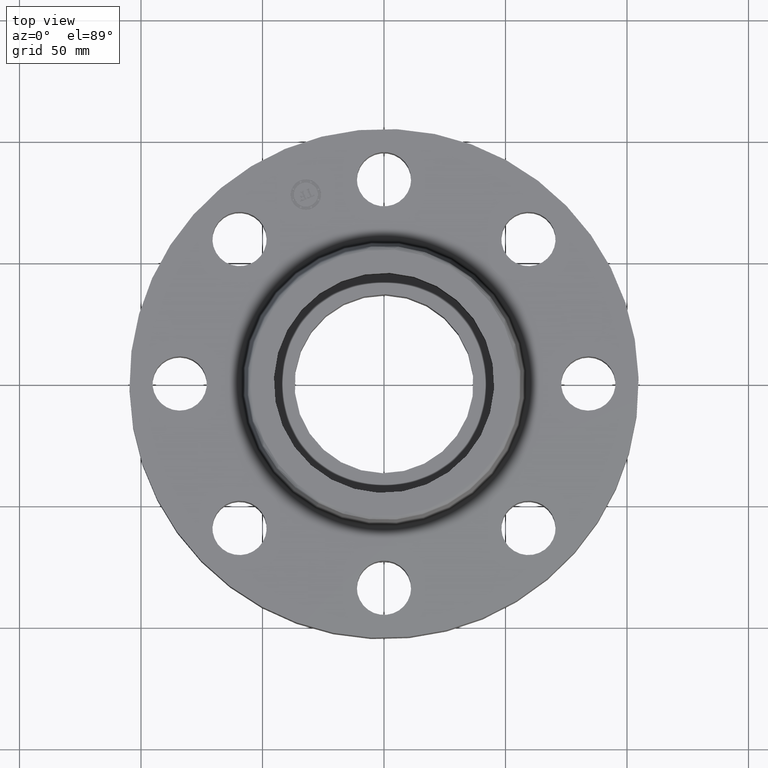
[diagram: clean part render]
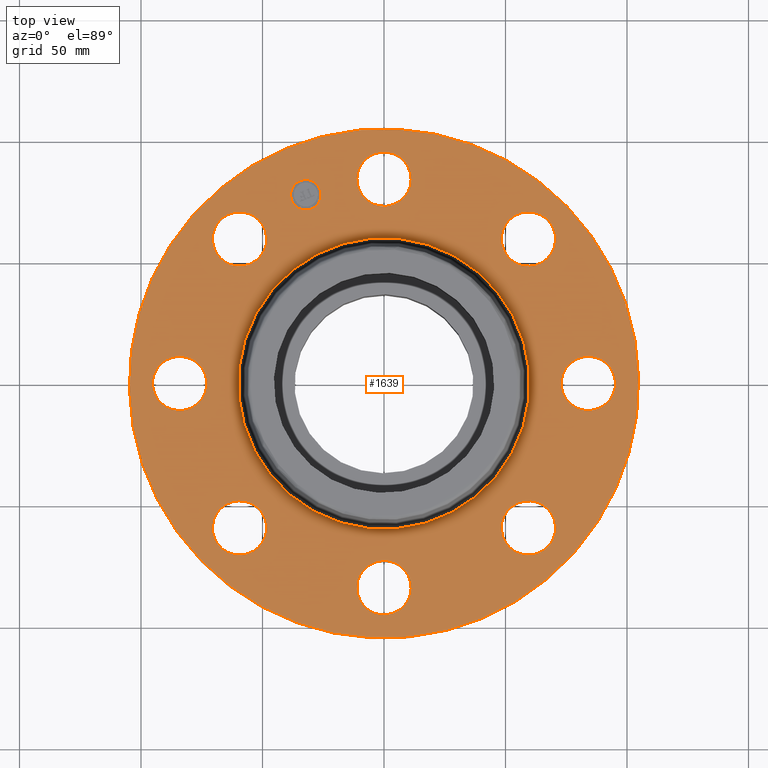
[diagram: same view with one face highlighted and labeled with its STEP entity id]
A machine part, top view. The second image highlights one B-rep face of the part: STEP entity #1639.
In plain terms, the highlighted planar face has unit normal (0, 0, -1).
Its self-contained STEP definition (entity closure, byte-faithful):
#833=AXIS2_PLACEMENT_3D('Circle Axis2P3D',#831,#832,$) ;
#852=AXIS2_PLACEMENT_3D('Circle Axis2P3D',#850,#851,$) ;
#883=AXIS2_PLACEMENT_3D('Circle Axis2P3D',#881,#882,$) ;
#914=AXIS2_PLACEMENT_3D('Circle Axis2P3D',#912,#913,$) ;
#945=AXIS2_PLACEMENT_3D('Circle Axis2P3D',#943,#944,$) ;
#976=AXIS2_PLACEMENT_3D('Circle Axis2P3D',#974,#975,$) ;
#1007=AXIS2_PLACEMENT_3D('Circle Axis2P3D',#1005,#1006,$) ;
#1038=AXIS2_PLACEMENT_3D('Circle Axis2P3D',#1036,#1037,$) ;
#1069=AXIS2_PLACEMENT_3D('Circle Axis2P3D',#1067,#1068,$) ;
#1100=AXIS2_PLACEMENT_3D('Circle Axis2P3D',#1098,#1099,$) ;
#1112=AXIS2_PLACEMENT_3D('Circle Axis2P3D',#1110,#1111,$) ;
#1128=AXIS2_PLACEMENT_3D('Circle Axis2P3D',#1126,#1127,$) ;
#1144=AXIS2_PLACEMENT_3D('Circle Axis2P3D',#1142,#1143,$) ;
#1160=AXIS2_PLACEMENT_3D('Circle Axis2P3D',#1158,#1159,$) ;
#1176=AXIS2_PLACEMENT_3D('Circle Axis2P3D',#1174,#1175,$) ;
#1192=AXIS2_PLACEMENT_3D('Circle Axis2P3D',#1190,#1191,$) ;
#1208=AXIS2_PLACEMENT_3D('Circle Axis2P3D',#1206,#1207,$) ;
#1224=AXIS2_PLACEMENT_3D('Circle Axis2P3D',#1222,#1223,$) ;
#1245=AXIS2_PLACEMENT_3D('Circle Axis2P3D',#1243,#1244,$) ;
#1280=AXIS2_PLACEMENT_3D('Circle Axis2P3D',#1278,#1279,$) ;
#1579=AXIS2_PLACEMENT_3D('Plane Axis2P3D',#1576,#1577,#1578) ;
#1623=AXIS2_PLACEMENT_3D('Circle Axis2P3D',#1621,#1622,$) ;
#1632=AXIS2_PLACEMENT_3D('Circle Axis2P3D',#1630,#1631,$) ;
#828=CARTESIAN_POINT('Vertex',(-1.97763034675,-3.62002806781,1.25000000001)) ;
#831=CARTESIAN_POINT('Axis2P3D Location',(0.,0.,1.25000000001)) ;
#835=CARTESIAN_POINT('Vertex',(1.97763034675,3.62002806781,1.25000000001)) ;
#850=CARTESIAN_POINT('Axis2P3D Location',(0.,0.,1.25000000001)) ;
#871=CARTESIAN_POINT('Vertex',(2.76272528293,-2.21664605203,1.25000000001)) ;
#878=CARTESIAN_POINT('Vertex',(1.91832160854,-2.46440083944,1.25000000001)) ;
#881=CARTESIAN_POINT('Axis2P3D Location',(2.34052344574,-2.34052344574,1.25000000001)) ;
#902=CARTESIAN_POINT('Vertex',(0.386136327233,-3.520947237,1.25000000001)) ;
#909=CARTESIAN_POINT('Vertex',(-0.386136327233,-3.09905276303,1.25000000001)) ;
#912=CARTESIAN_POINT('Axis2P3D Location',(4.05358090519E-016,-3.31000000001,1.25000000001)) ;
#933=CARTESIAN_POINT('Vertex',(-2.21664605203,-2.76272528293,1.25000000001)) ;
#940=CARTESIAN_POINT('Vertex',(-2.46440083944,-1.91832160854,1.25000000001)) ;
#943=CARTESIAN_POINT('Axis2P3D Location',(-2.34052344574,-2.34052344574,1.25000000001)) ;
#964=CARTESIAN_POINT('Vertex',(-3.520947237,-0.386136327233,1.25000000001)) ;
#971=CARTESIAN_POINT('Vertex',(-3.09905276303,0.386136327233,1.25000000001)) ;
#974=CARTESIAN_POINT('Axis2P3D Location',(-3.31000000001,-6.08037135779E-016,1.25000000001)) ;
#995=CARTESIAN_POINT('Vertex',(-2.76272528293,2.21664605203,1.25000000001)) ;
#1002=CARTESIAN_POINT('Vertex',(-1.91832160854,2.46440083944,1.25000000001)) ;
#1005=CARTESIAN_POINT('Axis2P3D Location',(-2.34052344574,2.34052344574,1.25000000001)) ;
#1026=CARTESIAN_POINT('Vertex',(-0.386136327233,3.520947237,1.25000000001)) ;
#1033=CARTESIAN_POINT('Vertex',(0.386136327233,3.09905276303,1.25000000001)) ;
#1036=CARTESIAN_POINT('Axis2P3D Location',(0.,3.31000000001,1.25000000001)) ;
#1057=CARTESIAN_POINT('Vertex',(2.21664605203,2.76272528293,1.25000000001)) ;
#1064=CARTESIAN_POINT('Vertex',(2.46440083944,1.91832160854,1.25000000001)) ;
#1067=CARTESIAN_POINT('Axis2P3D Location',(2.34052344574,2.34052344574,1.25000000001)) ;
#1088=CARTESIAN_POINT('Vertex',(3.520947237,0.386136327233,1.25000000001)) ;
#1095=CARTESIAN_POINT('Vertex',(3.09905276303,-0.386136327233,1.25000000001)) ;
#1098=CARTESIAN_POINT('Axis2P3D Location',(3.31000000001,2.0267904526E-016,1.25000000001)) ;
#1110=CARTESIAN_POINT('Axis2P3D Location',(2.34052344574,2.34052344574,1.25000000001)) ;
#1126=CARTESIAN_POINT('Axis2P3D Location',(0.,3.31000000001,1.25000000001)) ;
#1142=CARTESIAN_POINT('Axis2P3D Location',(-2.34052344574,2.34052344574,1.25000000001)) ;
#1158=CARTESIAN_POINT('Axis2P3D Location',(-3.31000000001,-6.08037135779E-016,1.25000000001)) ;
#1174=CARTESIAN_POINT('Axis2P3D Location',(-2.34052344574,-2.34052344574,1.25000000001)) ;
#1190=CARTESIAN_POINT('Axis2P3D Location',(4.05358090519E-016,-3.31000000001,1.25000000001)) ;
#1206=CARTESIAN_POINT('Axis2P3D Location',(2.34052344574,-2.34052344574,1.25000000001)) ;
#1222=CARTESIAN_POINT('Axis2P3D Location',(3.31000000001,2.0267904526E-016,1.25000000001)) ;
#1243=CARTESIAN_POINT('Axis2P3D Location',(0.,0.,1.25000000001)) ;
#1247=CARTESIAN_POINT('Vertex',(1.13161014174,2.07139847022,1.25000000001)) ;
#1249=CARTESIAN_POINT('Vertex',(-1.13161014174,-2.07139847022,1.25000000001)) ;
#1278=CARTESIAN_POINT('Axis2P3D Location',(0.,0.,1.25000000001)) ;
#1576=CARTESIAN_POINT('Axis2P3D Location',(0.,4.12500000002,1.25000000001)) ;
#1621=CARTESIAN_POINT('Axis2P3D Location',(-1.26668216113,3.05804125262,1.25000000001)) ;
#1625=CARTESIAN_POINT('Vertex',(-1.49534234543,2.96332710311,1.25000000001)) ;
#1627=CARTESIAN_POINT('Vertex',(-1.03802197684,3.15275540214,1.25000000001)) ;
#1630=CARTESIAN_POINT('Axis2P3D Location',(-1.26668216113,3.05804125262,1.25000000001)) ;
#832=DIRECTION('Axis2P3D Direction',(0.,0.,-0.0393700787402)) ;
#851=DIRECTION('Axis2P3D Direction',(0.,0.,-0.0393700787402)) ;
#882=DIRECTION('Axis2P3D Direction',(-0.,0.,-0.0393700787402)) ;
#913=DIRECTION('Axis2P3D Direction',(-0.,0.,-0.0393700787402)) ;
#944=DIRECTION('Axis2P3D Direction',(0.,0.,-0.0393700787402)) ;
#975=DIRECTION('Axis2P3D Direction',(0.,0.,-0.0393700787402)) ;
#1006=DIRECTION('Axis2P3D Direction',(0.,0.,-0.0393700787402)) ;
#1037=DIRECTION('Axis2P3D Direction',(0.,-0.,-0.0393700787402)) ;
#1068=DIRECTION('Axis2P3D Direction',(0.,-0.,-0.0393700787402)) ;
#1099=DIRECTION('Axis2P3D Direction',(0.,-0.,-0.0393700787402)) ;
#1111=DIRECTION('Axis2P3D Direction',(0.,-0.,-0.0393700787402)) ;
#1127=DIRECTION('Axis2P3D Direction',(0.,-0.,-0.0393700787402)) ;
#1143=DIRECTION('Axis2P3D Direction',(0.,0.,-0.0393700787402)) ;
#1159=DIRECTION('Axis2P3D Direction',(0.,0.,-0.0393700787402)) ;
#1175=DIRECTION('Axis2P3D Direction',(0.,0.,-0.0393700787402)) ;
#1191=DIRECTION('Axis2P3D Direction',(-0.,0.,-0.0393700787402)) ;
#1207=DIRECTION('Axis2P3D Direction',(-0.,0.,-0.0393700787402)) ;
#1223=DIRECTION('Axis2P3D Direction',(0.,-0.,-0.0393700787402)) ;
#1244=DIRECTION('Axis2P3D Direction',(0.,0.,-0.0393700787402)) ;
#1279=DIRECTION('Axis2P3D Direction',(0.,0.,-0.0393700787402)) ;
#1577=DIRECTION('Axis2P3D Direction',(0.,0.,-0.0393700787402)) ;
#1578=DIRECTION('Axis2P3D XDirection',(0.0393700787402,0.,0.)) ;
#1622=DIRECTION('Axis2P3D Direction',(0.,0.,-0.0393700787402)) ;
#1631=DIRECTION('Axis2P3D Direction',(0.,0.,-0.0393700787402)) ;
#1582=ORIENTED_EDGE('',*,*,#854,.F.) ;
#1583=ORIENTED_EDGE('',*,*,#837,.F.) ;
#1586=ORIENTED_EDGE('',*,*,#1040,.T.) ;
#1587=ORIENTED_EDGE('',*,*,#1130,.T.) ;
#1590=ORIENTED_EDGE('',*,*,#1282,.T.) ;
#1591=ORIENTED_EDGE('',*,*,#1251,.T.) ;
#1594=ORIENTED_EDGE('',*,*,#1114,.T.) ;
#1595=ORIENTED_EDGE('',*,*,#1071,.T.) ;
#1598=ORIENTED_EDGE('',*,*,#1226,.T.) ;
#1599=ORIENTED_EDGE('',*,*,#1102,.T.) ;
#1602=ORIENTED_EDGE('',*,*,#1210,.T.) ;
#1603=ORIENTED_EDGE('',*,*,#885,.T.) ;
#1606=ORIENTED_EDGE('',*,*,#1194,.T.) ;
#1607=ORIENTED_EDGE('',*,*,#916,.T.) ;
#1610=ORIENTED_EDGE('',*,*,#1178,.T.) ;
#1611=ORIENTED_EDGE('',*,*,#947,.T.) ;
#1614=ORIENTED_EDGE('',*,*,#1162,.T.) ;
#1615=ORIENTED_EDGE('',*,*,#978,.T.) ;
#1618=ORIENTED_EDGE('',*,*,#1146,.T.) ;
#1619=ORIENTED_EDGE('',*,*,#1009,.T.) ;
#1636=ORIENTED_EDGE('',*,*,#1629,.T.) ;
#1637=ORIENTED_EDGE('',*,*,#1634,.T.) ;
#1588=FACE_BOUND('',#1585,.T.) ;
#1592=FACE_BOUND('',#1589,.T.) ;
#1596=FACE_BOUND('',#1593,.T.) ;
#1600=FACE_BOUND('',#1597,.T.) ;
#1604=FACE_BOUND('',#1601,.T.) ;
#1608=FACE_BOUND('',#1605,.T.) ;
#1612=FACE_BOUND('',#1609,.T.) ;
#1616=FACE_BOUND('',#1613,.T.) ;
#1620=FACE_BOUND('',#1617,.T.) ;
#1638=FACE_BOUND('',#1635,.T.) ;
#1639=ADVANCED_FACE('PartBody',(#1584,#1588,#1592,#1596,#1600,#1604,#1608,#1612,#1616,#1620,#1638),#1580,.F.) ;
#834=CIRCLE('generated circle',#833,4.12500000002) ;
#853=CIRCLE('generated circle',#852,4.12500000002) ;
#884=CIRCLE('generated circle',#883,0.440000000002) ;
#915=CIRCLE('generated circle',#914,0.440000000002) ;
#946=CIRCLE('generated circle',#945,0.440000000002) ;
#977=CIRCLE('generated circle',#976,0.440000000002) ;
#1008=CIRCLE('generated circle',#1007,0.440000000002) ;
#1039=CIRCLE('generated circle',#1038,0.440000000002) ;
#1070=CIRCLE('generated circle',#1069,0.440000000002) ;
#1101=CIRCLE('generated circle',#1100,0.440000000002) ;
#1113=CIRCLE('generated circle',#1112,0.440000000002) ;
#1129=CIRCLE('generated circle',#1128,0.440000000002) ;
#1145=CIRCLE('generated circle',#1144,0.440000000002) ;
#1161=CIRCLE('generated circle',#1160,0.440000000002) ;
#1177=CIRCLE('generated circle',#1176,0.440000000002) ;
#1193=CIRCLE('generated circle',#1192,0.440000000002) ;
#1209=CIRCLE('generated circle',#1208,0.440000000002) ;
#1225=CIRCLE('generated circle',#1224,0.440000000002) ;
#1246=CIRCLE('generated circle',#1245,2.36034597788) ;
#1281=CIRCLE('generated circle',#1280,2.36034597788) ;
#1624=CIRCLE('generated circle',#1623,0.247500000001) ;
#1633=CIRCLE('generated circle',#1632,0.247500000001) ;
#837=EDGE_CURVE('',#829,#836,#834,.T.) ;
#854=EDGE_CURVE('',#836,#829,#853,.T.) ;
#885=EDGE_CURVE('',#872,#879,#884,.T.) ;
#916=EDGE_CURVE('',#903,#910,#915,.T.) ;
#947=EDGE_CURVE('',#934,#941,#946,.T.) ;
#978=EDGE_CURVE('',#965,#972,#977,.T.) ;
#1009=EDGE_CURVE('',#996,#1003,#1008,.T.) ;
#1040=EDGE_CURVE('',#1027,#1034,#1039,.T.) ;
#1071=EDGE_CURVE('',#1058,#1065,#1070,.T.) ;
#1102=EDGE_CURVE('',#1089,#1096,#1101,.T.) ;
#1114=EDGE_CURVE('',#1065,#1058,#1113,.T.) ;
#1130=EDGE_CURVE('',#1034,#1027,#1129,.T.) ;
#1146=EDGE_CURVE('',#1003,#996,#1145,.T.) ;
#1162=EDGE_CURVE('',#972,#965,#1161,.T.) ;
#1178=EDGE_CURVE('',#941,#934,#1177,.T.) ;
#1194=EDGE_CURVE('',#910,#903,#1193,.T.) ;
#1210=EDGE_CURVE('',#879,#872,#1209,.T.) ;
#1226=EDGE_CURVE('',#1096,#1089,#1225,.T.) ;
#1251=EDGE_CURVE('',#1248,#1250,#1246,.T.) ;
#1282=EDGE_CURVE('',#1250,#1248,#1281,.T.) ;
#1629=EDGE_CURVE('',#1626,#1628,#1624,.T.) ;
#1634=EDGE_CURVE('',#1628,#1626,#1633,.T.) ;
#1581=EDGE_LOOP('',(#1582,#1583)) ;
#1585=EDGE_LOOP('',(#1586,#1587)) ;
#1589=EDGE_LOOP('',(#1590,#1591)) ;
#1593=EDGE_LOOP('',(#1594,#1595)) ;
#1597=EDGE_LOOP('',(#1598,#1599)) ;
#1601=EDGE_LOOP('',(#1602,#1603)) ;
#1605=EDGE_LOOP('',(#1606,#1607)) ;
#1609=EDGE_LOOP('',(#1610,#1611)) ;
#1613=EDGE_LOOP('',(#1614,#1615)) ;
#1617=EDGE_LOOP('',(#1618,#1619)) ;
#1635=EDGE_LOOP('',(#1636,#1637)) ;
#1584=FACE_OUTER_BOUND('',#1581,.T.) ;
#1580=PLANE('',#1579) ;
#829=VERTEX_POINT('',#828) ;
#836=VERTEX_POINT('',#835) ;
#872=VERTEX_POINT('',#871) ;
#879=VERTEX_POINT('',#878) ;
#903=VERTEX_POINT('',#902) ;
#910=VERTEX_POINT('',#909) ;
#934=VERTEX_POINT('',#933) ;
#941=VERTEX_POINT('',#940) ;
#965=VERTEX_POINT('',#964) ;
#972=VERTEX_POINT('',#971) ;
#996=VERTEX_POINT('',#995) ;
#1003=VERTEX_POINT('',#1002) ;
#1027=VERTEX_POINT('',#1026) ;
#1034=VERTEX_POINT('',#1033) ;
#1058=VERTEX_POINT('',#1057) ;
#1065=VERTEX_POINT('',#1064) ;
#1089=VERTEX_POINT('',#1088) ;
#1096=VERTEX_POINT('',#1095) ;
#1248=VERTEX_POINT('',#1247) ;
#1250=VERTEX_POINT('',#1249) ;
#1626=VERTEX_POINT('',#1625) ;
#1628=VERTEX_POINT('',#1627) ;